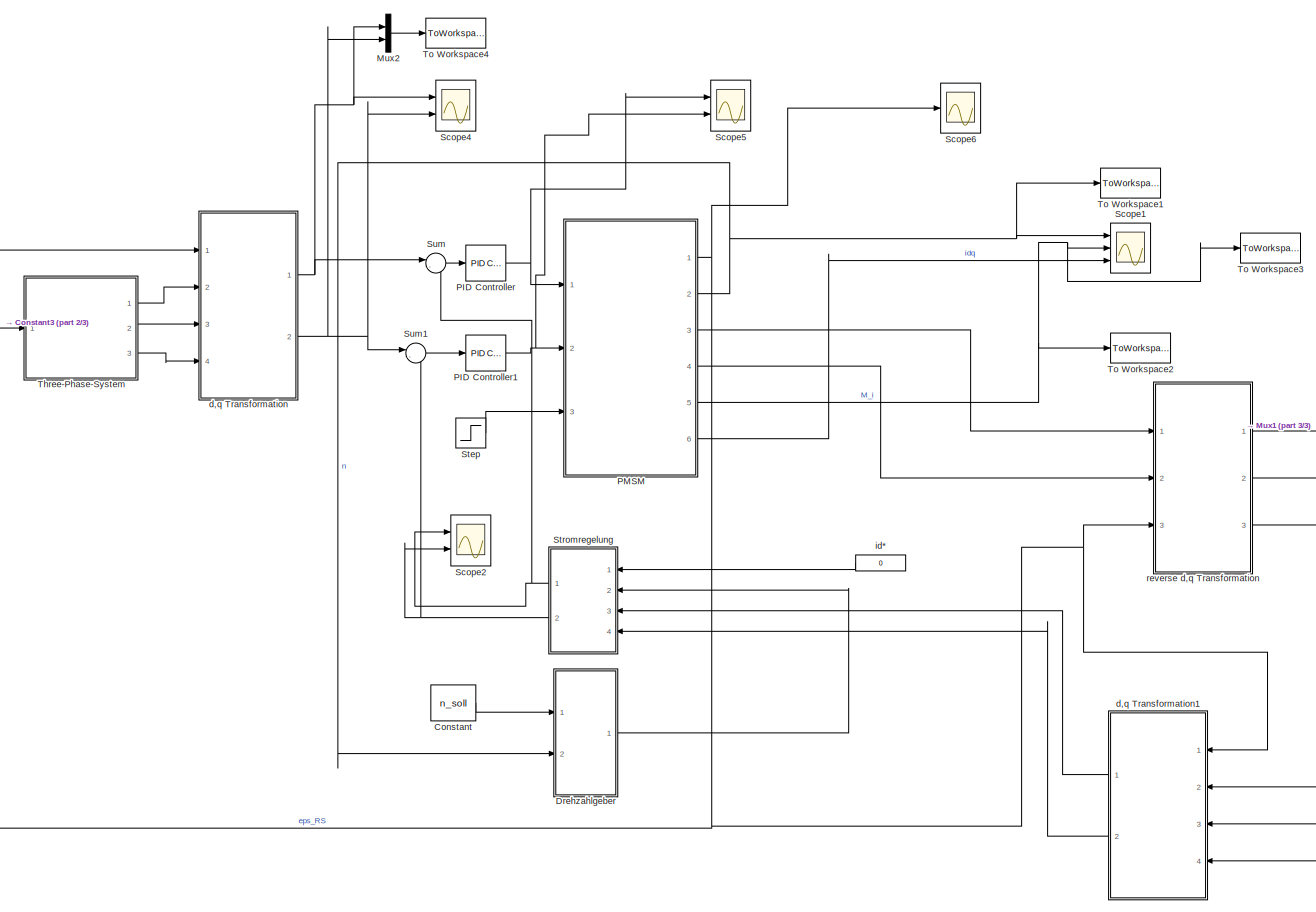
[diagram: root canvas - part 1/3, most of the canvas]
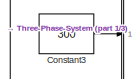
[diagram: root canvas - part 2/3, middle left region]
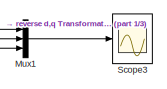
[diagram: root canvas - part 3/3, middle right region]
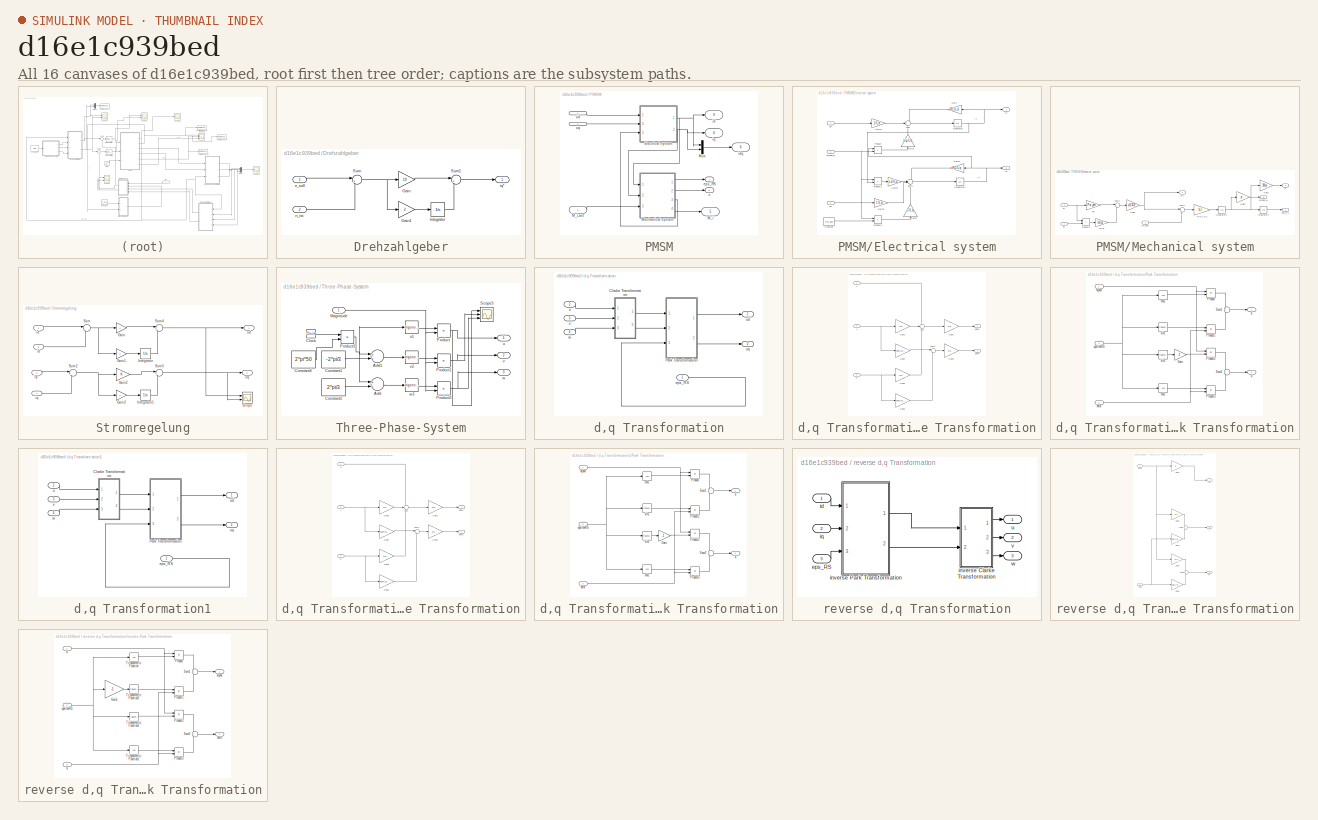
[diagram: thumbnail index - all 16 canvases of the model, root first then tree order]
MODEL slx_d16e1c939bed
KIND model
BLOCK [Constant] Constant
  Value = n_soll
BLOCK [Constant] Constant3
  Value = 300
BLOCK [SubSystem] Drehzahlgeber
  Ports = [2, 1]
  RequestExecContextInheritance = off
BLOCK [Gain] Drehzahlgeber/Gain
  Gain = 10
  OutDataTypeStr = Inherit: Inherit via internal rule
  ParamDataTypeStr = Inherit: Inherit via internal rule
  SaturateOnIntegerOverflow = off
BLOCK [Gain] Drehzahlgeber/Gain1
  Gain = 2
  OutDataTypeStr = Inherit: Inherit via internal rule
  ParamDataTypeStr = Inherit: Inherit via internal rule
  SaturateOnIntegerOverflow = off
BLOCK [Integrator] Drehzahlgeber/Integrator
  Ports = [1, 1]
BLOCK [Sum] Drehzahlgeber/Sum
  IconShape = round
  InputSameDT = off
  Inputs = |+-
  OutDataTypeStr = Inherit: Inherit via internal rule
  Ports = [2, 1]
  SaturateOnIntegerOverflow = off
BLOCK [Sum] Drehzahlgeber/Sum1
  IconShape = round
  InputSameDT = off
  Inputs = |++
  OutDataTypeStr = Inherit: Inherit via internal rule
  Ports = [2, 1]
  SaturateOnIntegerOverflow = off
BLOCK [Outport] Drehzahlgeber/iq*
  IconDisplay = Port number
BLOCK [Inport] Drehzahlgeber/n_ist
  IconDisplay = Port number
  Port = 2
BLOCK [Inport] Drehzahlgeber/n_soll
  IconDisplay = Port number
BLOCK [Mux] Mux1
  DisplayOption = bar
  Inputs = 3
  Ports = [3, 1]
BLOCK [Mux] Mux2
  DisplayOption = bar
  Inputs = 2
  Ports = [2, 1]
BLOCK [Reference] PID Controller  REF=simulink/Continuous/PID Controller
  AntiWindupMode = none
  Controller = PI
  D = 0
  DOutDataTypeStr = Inherit: Inherit via internal rule
  DOutMax = []
  DOutMin = []
  DParamDataTypeStr = Inherit: Inherit via internal rule
  DParamMax = []
  DParamMin = []
  DifferentiatorICPrevScaledInput = 0
  DifferentiatorOutDataTypeStr = Inherit: Inherit via internal rule
  DifferentiatorOutMax = []
  DifferentiatorOutMin = []
  ExternalReset = none
  FilterContinuousStateAttributes = ''
  FilterMethod = Forward Euler
  FilterOutDataTypeStr = Inherit: Inherit via internal rule
  FilterOutMax = []
  FilterOutMin = []
  FilterRTWStateStorageClass = Auto
  FilterStateMustResolveToSignalObject = off
  Form = Parallel
  I = 1
  IOutDataTypeStr = Inherit: Inherit via internal rule
  IOutMax = []
  IOutMin = []
  IParamDataTypeStr = Inherit: Inherit via internal rule
  IParamMax = []
  IParamMin = []
  IgnoreLimit = off
  InitialConditionForFilter = 0
  InitialConditionForIntegrator = 0
  InitialConditionSource = internal
  IntegratorContinuousStateAttributes = ''
  IntegratorMethod = Forward Euler
  IntegratorOutDataTypeStr = Inherit: Inherit via internal rule
  IntegratorOutMax = []
  IntegratorOutMin = []
  IntegratorRTWStateStorageClass = Auto
  IntegratorStateMustResolveToSignalObject = off
  Kb = 1
  KbOutDataTypeStr = Inherit: Inherit via internal rule
  KbOutMax = []
  KbOutMin = []
  KbParamDataTypeStr = Inherit: Inherit via internal rule
  KbParamMax = []
  KbParamMin = []
  Kt = 1
  KtOutDataTypeStr = Inherit: Inherit via internal rule
  KtOutMax = []
  KtOutMin = []
  KtParamDataTypeStr = Inherit: Inherit via internal rule
  KtParamMax = []
  KtParamMin = []
  LimitOutput = off
  LinearizeAsGain = on
  LockScale = off
  LowerSaturationLimit = -inf
  N = 100
  NOutDataTypeStr = Inherit: Inherit via internal rule
  NOutMax = []
  NOutMin = []
  NParamDataTypeStr = Inherit: Inherit via internal rule
  NParamMax = []
  NParamMin = []
  P = 10
  POutDataTypeStr = Inherit: Inherit via internal rule
  POutMax = []
  POutMin = []
  PParamDataTypeStr = Inherit: Inherit via internal rule
  PParamMax = []
  PParamMin = []
  Ports = [1, 1]
  RndMeth = Floor
  SampleTime = -1
  SaturateOnIntegerOverflow = off
  SaturationOutDataTypeStr = Inherit: Same as input
  SaturationOutMax = []
  SaturationOutMin = []
  SourceBlock = simulink/Continuous/PID Controller
  SourceType = PID 1dof
  SumAccumDataTypeStr = Inherit: Inherit via internal rule
  SumDAccumDataTypeStr = Inherit: Inherit via internal rule
  SumDOutDataTypeStr = Inherit: Inherit via internal rule
  SumDOutMax = []
  SumDOutMin = []
  SumI1AccumDataTypeStr = Inherit: Inherit via internal rule
  SumI1OutDataTypeStr = Inherit: Inherit via internal rule
  SumI1OutMax = []
  SumI1OutMin = []
  SumI2AccumDataTypeStr = Inherit: Inherit via internal rule
  SumI2OutDataTypeStr = Inherit: Inherit via internal rule
  SumI2OutMax = []
  SumI2OutMin = []
  SumI3AccumDataTypeStr = Inherit: Inherit via internal rule
  SumI3OutDataTypeStr = Inherit: Inherit via internal rule
  SumI3OutMax = []
  SumI3OutMin = []
  SumOutDataTypeStr = Inherit: Inherit via internal rule
  SumOutMax = []
  SumOutMin = []
  TimeDomain = Continuous-time
  TrackingMode = off
  UpperSaturationLimit = inf
  UseFilter = on
  ZeroCross = on
BLOCK [Reference] PID Controller1  REF=simulink/Continuous/PID Controller
  AntiWindupMode = none
  Controller = PI
  D = 0
  DOutDataTypeStr = Inherit: Inherit via internal rule
  DOutMax = []
  DOutMin = []
  DParamDataTypeStr = Inherit: Inherit via internal rule
  DParamMax = []
  DParamMin = []
  DifferentiatorICPrevScaledInput = 0
  DifferentiatorOutDataTypeStr = Inherit: Inherit via internal rule
  DifferentiatorOutMax = []
  DifferentiatorOutMin = []
  ExternalReset = none
  FilterContinuousStateAttributes = ''
  FilterMethod = Forward Euler
  FilterOutDataTypeStr = Inherit: Inherit via internal rule
  FilterOutMax = []
  FilterOutMin = []
  FilterRTWStateStorageClass = Auto
  FilterStateMustResolveToSignalObject = off
  Form = Parallel
  I = 1
  IOutDataTypeStr = Inherit: Inherit via internal rule
  IOutMax = []
  IOutMin = []
  IParamDataTypeStr = Inherit: Inherit via internal rule
  IParamMax = []
  IParamMin = []
  IgnoreLimit = off
  InitialConditionForFilter = 0
  InitialConditionForIntegrator = 0
  InitialConditionSource = internal
  IntegratorContinuousStateAttributes = ''
  IntegratorMethod = Forward Euler
  IntegratorOutDataTypeStr = Inherit: Inherit via internal rule
  IntegratorOutMax = []
  IntegratorOutMin = []
  IntegratorRTWStateStorageClass = Auto
  IntegratorStateMustResolveToSignalObject = off
  Kb = 1
  KbOutDataTypeStr = Inherit: Inherit via internal rule
  KbOutMax = []
  KbOutMin = []
  KbParamDataTypeStr = Inherit: Inherit via internal rule
  KbParamMax = []
  KbParamMin = []
  Kt = 1
  KtOutDataTypeStr = Inherit: Inherit via internal rule
  KtOutMax = []
  KtOutMin = []
  KtParamDataTypeStr = Inherit: Inherit via internal rule
  KtParamMax = []
  KtParamMin = []
  LimitOutput = off
  LinearizeAsGain = on
  LockScale = off
  LowerSaturationLimit = -inf
  N = 100
  NOutDataTypeStr = Inherit: Inherit via internal rule
  NOutMax = []
  NOutMin = []
  NParamDataTypeStr = Inherit: Inherit via internal rule
  NParamMax = []
  NParamMin = []
  P = 10
  POutDataTypeStr = Inherit: Inherit via internal rule
  POutMax = []
  POutMin = []
  PParamDataTypeStr = Inherit: Inherit via internal rule
  PParamMax = []
  PParamMin = []
  Ports = [1, 1]
  RndMeth = Floor
  SampleTime = -1
  SaturateOnIntegerOverflow = off
  SaturationOutDataTypeStr = Inherit: Same as input
  SaturationOutMax = []
  SaturationOutMin = []
  SourceBlock = simulink/Continuous/PID Controller
  SourceType = PID 1dof
  SumAccumDataTypeStr = Inherit: Inherit via internal rule
  SumDAccumDataTypeStr = Inherit: Inherit via internal rule
  SumDOutDataTypeStr = Inherit: Inherit via internal rule
  SumDOutMax = []
  SumDOutMin = []
  SumI1AccumDataTypeStr = Inherit: Inherit via internal rule
  SumI1OutDataTypeStr = Inherit: Inherit via internal rule
  SumI1OutMax = []
  SumI1OutMin = []
  SumI2AccumDataTypeStr = Inherit: Inherit via internal rule
  SumI2OutDataTypeStr = Inherit: Inherit via internal rule
  SumI2OutMax = []
  SumI2OutMin = []
  SumI3AccumDataTypeStr = Inherit: Inherit via internal rule
  SumI3OutDataTypeStr = Inherit: Inherit via internal rule
  SumI3OutMax = []
  SumI3OutMin = []
  SumOutDataTypeStr = Inherit: Inherit via internal rule
  SumOutMax = []
  SumOutMin = []
  TimeDomain = Continuous-time
  TrackingMode = off
  UpperSaturationLimit = inf
  UseFilter = on
  ZeroCross = on
BLOCK [SubSystem] PMSM
  Ports = [3, 6]
  RequestExecContextInheritance = off
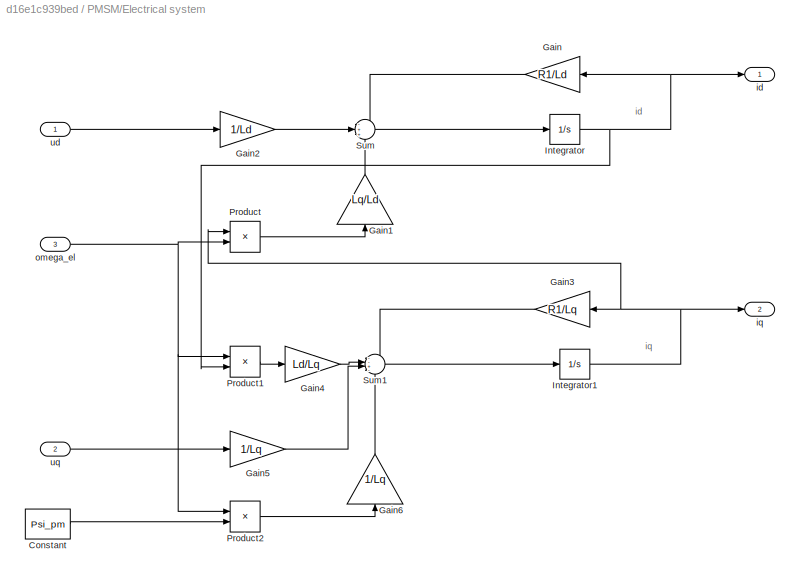
BLOCK [SubSystem] PMSM/Electrical system
  Ports = [3, 2]
  RequestExecContextInheritance = off
BLOCK [Constant] PMSM/Electrical system/Constant
  Value = Psi_pm
BLOCK [Gain] PMSM/Electrical system/Gain
  Gain = R1/Ld
  OutDataTypeStr = Inherit: Inherit via internal rule
  ParamDataTypeStr = Inherit: Inherit via internal rule
  SaturateOnIntegerOverflow = off
BLOCK [Gain] PMSM/Electrical system/Gain1
  Gain = Lq/Ld
  OutDataTypeStr = Inherit: Inherit via internal rule
  ParamDataTypeStr = Inherit: Inherit via internal rule
  SaturateOnIntegerOverflow = off
BLOCK [Gain] PMSM/Electrical system/Gain2
  Gain = 1/Ld
  OutDataTypeStr = Inherit: Inherit via internal rule
  ParamDataTypeStr = Inherit: Inherit via internal rule
  SaturateOnIntegerOverflow = off
BLOCK [Gain] PMSM/Electrical system/Gain3
  Gain = R1/Lq
  OutDataTypeStr = Inherit: Inherit via internal rule
  ParamDataTypeStr = Inherit: Inherit via internal rule
  SaturateOnIntegerOverflow = off
BLOCK [Gain] PMSM/Electrical system/Gain4
  Gain = Ld/Lq
  OutDataTypeStr = Inherit: Inherit via internal rule
  ParamDataTypeStr = Inherit: Inherit via internal rule
  SaturateOnIntegerOverflow = off
BLOCK [Gain] PMSM/Electrical system/Gain5
  Gain = 1/Lq
  OutDataTypeStr = Inherit: Inherit via internal rule
  ParamDataTypeStr = Inherit: Inherit via internal rule
  SaturateOnIntegerOverflow = off
BLOCK [Gain] PMSM/Electrical system/Gain6
  Gain = 1/Lq
  OutDataTypeStr = Inherit: Inherit via internal rule
  ParamDataTypeStr = Inherit: Inherit via internal rule
  SaturateOnIntegerOverflow = off
BLOCK [Integrator] PMSM/Electrical system/Integrator
  Ports = [1, 1]
BLOCK [Integrator] PMSM/Electrical system/Integrator1
  Ports = [1, 1]
BLOCK [Product] PMSM/Electrical system/Product
  InputSameDT = off
  OutDataTypeStr = Inherit: Inherit via internal rule
  Ports = [2, 1]
  RndMeth = Floor
  SaturateOnIntegerOverflow = off
BLOCK [Product] PMSM/Electrical system/Product1
  InputSameDT = off
  OutDataTypeStr = Inherit: Inherit via internal rule
  Ports = [2, 1]
  RndMeth = Floor
  SaturateOnIntegerOverflow = off
BLOCK [Product] PMSM/Electrical system/Product2
  InputSameDT = off
  OutDataTypeStr = Inherit: Inherit via internal rule
  Ports = [2, 1]
  RndMeth = Floor
  SaturateOnIntegerOverflow = off
BLOCK [Sum] PMSM/Electrical system/Sum
  IconShape = round
  InputSameDT = off
  Inputs = -++
  OutDataTypeStr = Inherit: Inherit via internal rule
  Ports = [3, 1]
  SaturateOnIntegerOverflow = off
BLOCK [Sum] PMSM/Electrical system/Sum1
  IconShape = round
  InputSameDT = off
  Inputs = --+-
  OutDataTypeStr = Inherit: Inherit via internal rule
  Ports = [4, 1]
  SaturateOnIntegerOverflow = off
BLOCK [Outport] PMSM/Electrical system/id
  IconDisplay = Port number
BLOCK [Outport] PMSM/Electrical system/iq
  IconDisplay = Port number
  Port = 2
BLOCK [Inport] PMSM/Electrical system/omega_el
  IconDisplay = Port number
  Port = 3
BLOCK [Inport] PMSM/Electrical system/ud
  IconDisplay = Port number
BLOCK [Inport] PMSM/Electrical system/uq
  IconDisplay = Port number
  Port = 2
BLOCK [Inport] PMSM/M_Last
  IconDisplay = Port number
  Port = 3
BLOCK [Outport] PMSM/M_i
  IconDisplay = Port number
  Port = 5
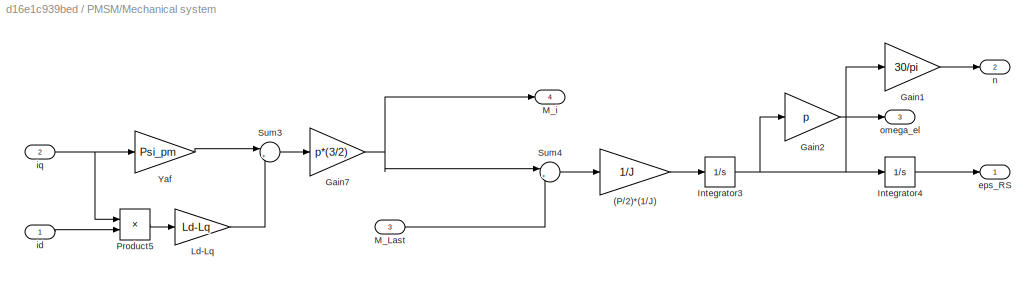
BLOCK [SubSystem] PMSM/Mechanical system
  Ports = [3, 4]
  RequestExecContextInheritance = off
BLOCK [Gain] PMSM/Mechanical system/(P//2)*(1//J)
  Gain = 1/J
  OutDataTypeStr = Inherit: Inherit via internal rule
  ParamDataTypeStr = Inherit: Inherit via internal rule
  SaturateOnIntegerOverflow = off
BLOCK [Gain] PMSM/Mechanical system/Gain1
  Gain = 30/pi
  OutDataTypeStr = Inherit: Inherit via internal rule
  ParamDataTypeStr = Inherit: Inherit via internal rule
  SaturateOnIntegerOverflow = off
BLOCK [Gain] PMSM/Mechanical system/Gain2
  Gain = p
  OutDataTypeStr = Inherit: Inherit via internal rule
  ParamDataTypeStr = Inherit: Inherit via internal rule
  SaturateOnIntegerOverflow = off
BLOCK [Gain] PMSM/Mechanical system/Gain7
  Gain = p*(3/2)
  OutDataTypeStr = Inherit: Inherit via internal rule
  ParamDataTypeStr = Inherit: Inherit via internal rule
  SaturateOnIntegerOverflow = off
BLOCK [Integrator] PMSM/Mechanical system/Integrator3
  Ports = [1, 1]
BLOCK [Integrator] PMSM/Mechanical system/Integrator4
  Ports = [1, 1]
BLOCK [Gain] PMSM/Mechanical system/Ld-Lq
  Gain = Ld-Lq
  OutDataTypeStr = Inherit: Inherit via internal rule
  ParamDataTypeStr = Inherit: Inherit via internal rule
  SaturateOnIntegerOverflow = off
BLOCK [Inport] PMSM/Mechanical system/M_Last
  IconDisplay = Port number
  Port = 3
BLOCK [Outport] PMSM/Mechanical system/M_i
  IconDisplay = Port number
  Port = 4
BLOCK [Product] PMSM/Mechanical system/Product5
  InputSameDT = off
  OutDataTypeStr = Inherit: Inherit via internal rule
  Ports = [2, 1]
  SaturateOnIntegerOverflow = off
BLOCK [Sum] PMSM/Mechanical system/Sum3
  IconShape = round
  InputSameDT = off
  Inputs = |++
  OutDataTypeStr = Inherit: Inherit via internal rule
  Ports = [2, 1]
  SaturateOnIntegerOverflow = off
BLOCK [Sum] PMSM/Mechanical system/Sum4
  IconShape = round
  InputSameDT = off
  Inputs = |+-
  OutDataTypeStr = Inherit: Inherit via internal rule
  Ports = [2, 1]
  SaturateOnIntegerOverflow = off
BLOCK [Gain] PMSM/Mechanical system/Yaf
  Gain = Psi_pm
  OutDataTypeStr = Inherit: Inherit via internal rule
  ParamDataTypeStr = Inherit: Inherit via internal rule
  SaturateOnIntegerOverflow = off
BLOCK [Outport] PMSM/Mechanical system/eps_RS
  IconDisplay = Port number
BLOCK [Inport] PMSM/Mechanical system/id
  IconDisplay = Port number
BLOCK [Inport] PMSM/Mechanical system/iq
  IconDisplay = Port number
  Port = 2
BLOCK [Outport] PMSM/Mechanical system/n
  IconDisplay = Port number
  Port = 2
BLOCK [Outport] PMSM/Mechanical system/omega_el
  IconDisplay = Port number
  Port = 3
BLOCK [Mux] PMSM/Mux
  DisplayOption = bar
  Inputs = 2
  Ports = [2, 1]
BLOCK [Outport] PMSM/eps_RS
  IconDisplay = Port number
BLOCK [Outport] PMSM/id
  IconDisplay = Port number
  Port = 3
BLOCK [Outport] PMSM/idq
  IconDisplay = Port number
  Port = 6
BLOCK [Outport] PMSM/iq
  IconDisplay = Port number
  Port = 4
BLOCK [Outport] PMSM/n
  IconDisplay = Port number
  Port = 2
BLOCK [Inport] PMSM/ud 
  IconDisplay = Port number
BLOCK [Inport] PMSM/uq
  IconDisplay = Port number
  Port = 2
BLOCK [Scope] Scope1
  Floating = off
  LimitDataPoints = off
  NumInputPorts = 3
  Ports = [3]
  SaveName = ScopeData3
  ShowLegends = off
  TimeRange = 0.112043795620438
  YMax = 5000~2500~6000
  YMin = 0~-1000~-4000
  ZoomMode = xonly
BLOCK [Scope] Scope2
  Floating = off
  LimitDataPoints = off
  NumInputPorts = 2
  Ports = [2]
  SaveName = ScopeData2
  ShowLegends = off
  TimeRange = 0.2
  YMax = 20000~400
  YMin = -25000~-400
  ZoomMode = xonly
BLOCK [Scope] Scope3
  Floating = off
  LimitDataPoints = off
  NumInputPorts = 1
  Ports = [1]
  SaveName = ScopeData4
  ShowLegends = off
  TimeRange = 0.02
  YMax = 5000
  YMin = 0
  ZoomMode = xonly
BLOCK [Scope] Scope4
  Floating = off
  LimitDataPoints = off
  NumInputPorts = 2
  Ports = [2]
  SaveName = ScopeData5
  ShowLegends = off
  TimeRange = 0.2
  YMax = 20000~400
  YMin = -25000~-400
  ZoomMode = xonly
BLOCK [Scope] Scope5
  Floating = off
  LimitDataPoints = off
  NumInputPorts = 2
  Ports = [2]
  SaveName = ScopeData6
  ShowLegends = off
  TimeRange = 0.2
  YMax = 20000~400
  YMin = -25000~-400
  ZoomMode = xonly
BLOCK [Scope] Scope6
  Floating = off
  LimitDataPoints = off
  NumInputPorts = 1
  Ports = [1]
  SaveName = ScopeData7
  ShowLegends = off
  TimeRange = 0.02
  YMax = 5000
  YMin = 0
  ZoomMode = xonly
BLOCK [Step] Step
  After = 30
  SampleTime = 0
  Time = 0.08
BLOCK [SubSystem] Stromregelung
  Ports = [4, 2]
  RequestExecContextInheritance = off
BLOCK [Gain] Stromregelung/Gain
  OutDataTypeStr = Inherit: Inherit via internal rule
  ParamDataTypeStr = Inherit: Inherit via internal rule
  SaturateOnIntegerOverflow = off
BLOCK [Gain] Stromregelung/Gain1
  Gain = 2
  OutDataTypeStr = Inherit: Inherit via internal rule
  ParamDataTypeStr = Inherit: Inherit via internal rule
  SaturateOnIntegerOverflow = off
BLOCK [Gain] Stromregelung/Gain2
  OutDataTypeStr = Inherit: Inherit via internal rule
  ParamDataTypeStr = Inherit: Inherit via internal rule
  SaturateOnIntegerOverflow = off
BLOCK [Gain] Stromregelung/Gain3
  Gain = 2
  OutDataTypeStr = Inherit: Inherit via internal rule
  ParamDataTypeStr = Inherit: Inherit via internal rule
  SaturateOnIntegerOverflow = off
BLOCK [Integrator] Stromregelung/Integrator
  Ports = [1, 1]
BLOCK [Integrator] Stromregelung/Integrator1
  Ports = [1, 1]
BLOCK [Scope] Stromregelung/Scope
  DataFormat = StructureWithTime
  Floating = off
  LimitDataPoints = off
  NumInputPorts = 2
  Ports = [2]
  SampleTime = 0
  SaveName = ScopeData1
  ShowLegends = off
  TimeRange = 5
  YMax = 0~5
  YMin = -1.3~-5
BLOCK [Sum] Stromregelung/Sum
  IconShape = round
  InputSameDT = off
  Inputs = |+-
  OutDataTypeStr = Inherit: Inherit via internal rule
  Ports = [2, 1]
  SaturateOnIntegerOverflow = off
BLOCK [Sum] Stromregelung/Sum2
  IconShape = round
  InputSameDT = off
  Inputs = |+-
  OutDataTypeStr = Inherit: Inherit via internal rule
  Ports = [2, 1]
  SaturateOnIntegerOverflow = off
BLOCK [Sum] Stromregelung/Sum4
  IconShape = round
  InputSameDT = off
  Inputs = |++
  OutDataTypeStr = Inherit: Inherit via internal rule
  Ports = [2, 1]
  SaturateOnIntegerOverflow = off
BLOCK [Sum] Stromregelung/Sum5
  IconShape = round
  InputSameDT = off
  Inputs = |++
  OutDataTypeStr = Inherit: Inherit via internal rule
  Ports = [2, 1]
  SaturateOnIntegerOverflow = off
BLOCK [Inport] Stromregelung/id
  IconDisplay = Port number
  Port = 3
BLOCK [Inport] Stromregelung/id*
  IconDisplay = Port number
BLOCK [Inport] Stromregelung/iq
  IconDisplay = Port number
  Port = 4
BLOCK [Inport] Stromregelung/iq*
  IconDisplay = Port number
  Port = 2
BLOCK [Outport] Stromregelung/ud
  IconDisplay = Port number
BLOCK [Outport] Stromregelung/uq
  IconDisplay = Port number
  Port = 2
BLOCK [Sum] Sum
  IconShape = round
  InputSameDT = off
  Inputs = |-+
  OutDataTypeStr = Inherit: Inherit via internal rule
  Ports = [2, 1]
  SaturateOnIntegerOverflow = off
BLOCK [Sum] Sum1
  IconShape = round
  InputSameDT = off
  Inputs = |-+
  OutDataTypeStr = Inherit: Inherit via internal rule
  Ports = [2, 1]
  SaturateOnIntegerOverflow = off
BLOCK [SubSystem] Three-Phase-System
  Ports = [1, 3]
  RequestExecContextInheritance = off
BLOCK [Sum] Three-Phase-System/Add
  InputSameDT = off
  OutDataTypeStr = Inherit: Inherit via internal rule
  Ports = [2, 1]
  SaturateOnIntegerOverflow = off
BLOCK [Sum] Three-Phase-System/Add1
  InputSameDT = off
  OutDataTypeStr = Inherit: Inherit via internal rule
  Ports = [2, 1]
  SaturateOnIntegerOverflow = off
BLOCK [Clock] Three-Phase-System/Clock
BLOCK [Constant] Three-Phase-System/Constant1
  Value = -2*pi/3
BLOCK [Constant] Three-Phase-System/Constant2
  Value = 2*pi/3
BLOCK [Constant] Three-Phase-System/Constant4
  Value = 2*pi*50
BLOCK [Inport] Three-Phase-System/Magnitude
  IconDisplay = Port number
BLOCK [Product] Three-Phase-System/Product
  InputSameDT = off
  OutDataTypeStr = Inherit: Inherit via internal rule
  Ports = [2, 1]
  RndMeth = Floor
  SaturateOnIntegerOverflow = off
BLOCK [Product] Three-Phase-System/Product1
  InputSameDT = off
  OutDataTypeStr = Inherit: Inherit via internal rule
  Ports = [2, 1]
  RndMeth = Floor
  SaturateOnIntegerOverflow = off
BLOCK [Product] Three-Phase-System/Product2
  InputSameDT = off
  OutDataTypeStr = Inherit: Inherit via internal rule
  Ports = [2, 1]
  RndMeth = Floor
  SaturateOnIntegerOverflow = off
BLOCK [Product] Three-Phase-System/Product3
  InputSameDT = off
  OutDataTypeStr = Inherit: Inherit via internal rule
  Ports = [2, 1]
  RndMeth = Floor
  SaturateOnIntegerOverflow = off
BLOCK [Scope] Three-Phase-System/Scope3
  Floating = off
  LimitDataPoints = off
  NumInputPorts = 3
  Ports = [3]
  ShowLegends = off
  YMax = 5~5~5
  YMin = -5~-5~-5
  ZoomMode = xonly
BLOCK [Outport] Three-Phase-System/u
  IconDisplay = Port number
BLOCK [Trigonometry] Three-Phase-System/u1
  Ports = [1, 1]
BLOCK [Outport] Three-Phase-System/v
  IconDisplay = Port number
  Port = 2
BLOCK [Trigonometry] Three-Phase-System/v2
  Ports = [1, 1]
BLOCK [Outport] Three-Phase-System/w
  IconDisplay = Port number
  Port = 3
BLOCK [Trigonometry] Three-Phase-System/w3
  Ports = [1, 1]
BLOCK [ToWorkspace] To Workspace1
  FixptAsFi = on
  MaxDataPoints = inf
  Ports = [1]
  SampleTime = -1
  Save2DSignal = 3-D array (concatenate along third dimension)
  SaveFormat = Timeseries
  VariableName = n1
BLOCK [ToWorkspace] To Workspace2
  FixptAsFi = on
  MaxDataPoints = inf
  Ports = [1]
  SampleTime = -1
  Save2DSignal = 3-D array (concatenate along third dimension)
  SaveFormat = Timeseries
  VariableName = Mi1
BLOCK [ToWorkspace] To Workspace3
  FixptAsFi = on
  MaxDataPoints = inf
  Ports = [1]
  SampleTime = -1
  Save2DSignal = 3-D array (concatenate along third dimension)
  SaveFormat = Timeseries
  VariableName = idq1
BLOCK [ToWorkspace] To Workspace4
  FixptAsFi = on
  MaxDataPoints = inf
  Ports = [1]
  SampleTime = -1
  Save2DSignal = 3-D array (concatenate along third dimension)
  SaveFormat = Timeseries
  VariableName = n
BLOCK [SubSystem] d,q Transformation
  Ports = [4, 2]
  RequestExecContextInheritance = off
BLOCK [SubSystem] d,q Transformation/Clarke Transformation
  Ports = [3, 2]
  RequestExecContextInheritance = off
BLOCK [Gain] d,q Transformation/Clarke Transformation/Gain1
  Gain = 2/3
  OutDataTypeStr = Inherit: Inherit via internal rule
  ParamDataTypeStr = Inherit: Inherit via internal rule
  SaturateOnIntegerOverflow = off
BLOCK [Gain] d,q Transformation/Clarke Transformation/Gain3
  Gain = 1/2
  OutDataTypeStr = Inherit: Inherit via internal rule
  ParamDataTypeStr = Inherit: Inherit via internal rule
  SaturateOnIntegerOverflow = off
BLOCK [Gain] d,q Transformation/Clarke Transformation/Gain4
  Gain = sqrt(3)/2
  OutDataTypeStr = Inherit: Inherit via internal rule
  ParamDataTypeStr = Inherit: Inherit via internal rule
  SaturateOnIntegerOverflow = off
BLOCK [Gain] d,q Transformation/Clarke Transformation/Gain5
  Gain = 1/2
  OutDataTypeStr = Inherit: Inherit via internal rule
  ParamDataTypeStr = Inherit: Inherit via internal rule
  SaturateOnIntegerOverflow = off
BLOCK [Gain] d,q Transformation/Clarke Transformation/Gain6
  Gain = sqrt(3)/2
  OutDataTypeStr = Inherit: Inherit via internal rule
  ParamDataTypeStr = Inherit: Inherit via internal rule
  SaturateOnIntegerOverflow = off
BLOCK [Gain] d,q Transformation/Clarke Transformation/Gain9
  Gain = 2/3
  OutDataTypeStr = Inherit: Inherit via internal rule
  ParamDataTypeStr = Inherit: Inherit via internal rule
  SaturateOnIntegerOverflow = off
BLOCK [Sum] d,q Transformation/Clarke Transformation/Sum
  IconShape = round
  InputSameDT = off
  Inputs = +--
  OutDataTypeStr = Inherit: Inherit via internal rule
  Ports = [3, 1]
  SaturateOnIntegerOverflow = off
BLOCK [Sum] d,q Transformation/Clarke Transformation/Sum1
  IconShape = round
  InputSameDT = off
  Inputs = |+-
  OutDataTypeStr = Inherit: Inherit via internal rule
  Ports = [2, 1]
  SaturateOnIntegerOverflow = off
BLOCK [Outport] d,q Transformation/Clarke Transformation/alpha
  IconDisplay = Port number
BLOCK [Outport] d,q Transformation/Clarke Transformation/beta
  IconDisplay = Port number
  Port = 2
BLOCK [Inport] d,q Transformation/Clarke Transformation/u
  IconDisplay = Port number
BLOCK [Inport] d,q Transformation/Clarke Transformation/v
  IconDisplay = Port number
  Port = 2
BLOCK [Inport] d,q Transformation/Clarke Transformation/w
  IconDisplay = Port number
  Port = 3
BLOCK [SubSystem] d,q Transformation/Park Transformation
  Ports = [3, 2]
  RequestExecContextInheritance = off
BLOCK [Gain] d,q Transformation/Park Transformation/Gain
  Gain = -1
  OutDataTypeStr = Inherit: Inherit via internal rule
  ParamDataTypeStr = Inherit: Inherit via internal rule
  SaturateOnIntegerOverflow = off
BLOCK [Product] d,q Transformation/Park Transformation/Product
  InputSameDT = off
  OutDataTypeStr = Inherit: Inherit via internal rule
  Ports = [2, 1]
  RndMeth = Floor
  SaturateOnIntegerOverflow = off
BLOCK [Product] d,q Transformation/Park Transformation/Product1
  InputSameDT = off
  OutDataTypeStr = Inherit: Inherit via internal rule
  Ports = [2, 1]
  RndMeth = Floor
  SaturateOnIntegerOverflow = off
BLOCK [Product] d,q Transformation/Park Transformation/Product2
  InputSameDT = off
  OutDataTypeStr = Inherit: Inherit via internal rule
  Ports = [2, 1]
  RndMeth = Floor
  SaturateOnIntegerOverflow = off
BLOCK [Product] d,q Transformation/Park Transformation/Product3
  InputSameDT = off
  OutDataTypeStr = Inherit: Inherit via internal rule
  Ports = [2, 1]
  RndMeth = Floor
  SaturateOnIntegerOverflow = off
BLOCK [Sum] d,q Transformation/Park Transformation/Sum1
  IconShape = round
  InputSameDT = off
  OutDataTypeStr = Inherit: Inherit via internal rule
  Ports = [2, 1]
  SaturateOnIntegerOverflow = off
BLOCK [Sum] d,q Transformation/Park Transformation/Sum2
  IconShape = round
  InputSameDT = off
  OutDataTypeStr = Inherit: Inherit via internal rule
  Ports = [2, 1]
  SaturateOnIntegerOverflow = off
BLOCK [Inport] d,q Transformation/Park Transformation/alpha
  IconDisplay = Port number
BLOCK [Inport] d,q Transformation/Park Transformation/beta
  IconDisplay = Port number
  Port = 2
BLOCK [Trigonometry] d,q Transformation/Park Transformation/cos1
  Operator = cos
  Ports = [1, 1]
BLOCK [Trigonometry] d,q Transformation/Park Transformation/cos2
  Operator = cos
  Ports = [1, 1]
BLOCK [Outport] d,q Transformation/Park Transformation/d
  IconDisplay = Port number
BLOCK [Inport] d,q Transformation/Park Transformation/epsilonRS
  IconDisplay = Port number
  Port = 3
BLOCK [Outport] d,q Transformation/Park Transformation/q
  IconDisplay = Port number
  Port = 2
BLOCK [Trigonometry] d,q Transformation/Park Transformation/sin1
  Ports = [1, 1]
BLOCK [Trigonometry] d,q Transformation/Park Transformation/sin2
  Ports = [1, 1]
BLOCK [Inport] d,q Transformation/eps_RS
  IconDisplay = Port number
BLOCK [Inport] d,q Transformation/u
  IconDisplay = Port number
  Port = 2
BLOCK [Outport] d,q Transformation/ud
  IconDisplay = Port number
BLOCK [Outport] d,q Transformation/uq
  IconDisplay = Port number
  Port = 2
BLOCK [Inport] d,q Transformation/v
  IconDisplay = Port number
  Port = 3
BLOCK [Inport] d,q Transformation/w
  IconDisplay = Port number
  Port = 4
BLOCK [SubSystem] d,q Transformation1
  Ports = [4, 2]
  RequestExecContextInheritance = off
BLOCK [SubSystem] d,q Transformation1/Clarke Transformation
  Ports = [3, 2]
  RequestExecContextInheritance = off
BLOCK [Gain] d,q Transformation1/Clarke Transformation/Gain1
  Gain = 2/3
  OutDataTypeStr = Inherit: Inherit via internal rule
  ParamDataTypeStr = Inherit: Inherit via internal rule
  SaturateOnIntegerOverflow = off
BLOCK [Gain] d,q Transformation1/Clarke Transformation/Gain3
  Gain = 1/2
  OutDataTypeStr = Inherit: Inherit via internal rule
  ParamDataTypeStr = Inherit: Inherit via internal rule
  SaturateOnIntegerOverflow = off
BLOCK [Gain] d,q Transformation1/Clarke Transformation/Gain4
  Gain = sqrt(3)/2
  OutDataTypeStr = Inherit: Inherit via internal rule
  ParamDataTypeStr = Inherit: Inherit via internal rule
  SaturateOnIntegerOverflow = off
BLOCK [Gain] d,q Transformation1/Clarke Transformation/Gain5
  Gain = 1/2
  OutDataTypeStr = Inherit: Inherit via internal rule
  ParamDataTypeStr = Inherit: Inherit via internal rule
  SaturateOnIntegerOverflow = off
BLOCK [Gain] d,q Transformation1/Clarke Transformation/Gain6
  Gain = sqrt(3)/2
  OutDataTypeStr = Inherit: Inherit via internal rule
  ParamDataTypeStr = Inherit: Inherit via internal rule
  SaturateOnIntegerOverflow = off
BLOCK [Gain] d,q Transformation1/Clarke Transformation/Gain9
  Gain = 2/3
  OutDataTypeStr = Inherit: Inherit via internal rule
  ParamDataTypeStr = Inherit: Inherit via internal rule
  SaturateOnIntegerOverflow = off
BLOCK [Sum] d,q Transformation1/Clarke Transformation/Sum
  IconShape = round
  InputSameDT = off
  Inputs = +--
  OutDataTypeStr = Inherit: Inherit via internal rule
  Ports = [3, 1]
  SaturateOnIntegerOverflow = off
BLOCK [Sum] d,q Transformation1/Clarke Transformation/Sum1
  IconShape = round
  InputSameDT = off
  Inputs = |+-
  OutDataTypeStr = Inherit: Inherit via internal rule
  Ports = [2, 1]
  SaturateOnIntegerOverflow = off
BLOCK [Outport] d,q Transformation1/Clarke Transformation/alpha
  IconDisplay = Port number
BLOCK [Outport] d,q Transformation1/Clarke Transformation/beta
  IconDisplay = Port number
  Port = 2
BLOCK [Inport] d,q Transformation1/Clarke Transformation/u
  IconDisplay = Port number
BLOCK [Inport] d,q Transformation1/Clarke Transformation/v
  IconDisplay = Port number
  Port = 2
BLOCK [Inport] d,q Transformation1/Clarke Transformation/w
  IconDisplay = Port number
  Port = 3
BLOCK [SubSystem] d,q Transformation1/Park Transformation
  Ports = [3, 2]
  RequestExecContextInheritance = off
BLOCK [Gain] d,q Transformation1/Park Transformation/Gain
  Gain = -1
  OutDataTypeStr = Inherit: Inherit via internal rule
  ParamDataTypeStr = Inherit: Inherit via internal rule
  SaturateOnIntegerOverflow = off
BLOCK [Product] d,q Transformation1/Park Transformation/Product
  InputSameDT = off
  OutDataTypeStr = Inherit: Inherit via internal rule
  Ports = [2, 1]
  RndMeth = Floor
  SaturateOnIntegerOverflow = off
BLOCK [Product] d,q Transformation1/Park Transformation/Product1
  InputSameDT = off
  OutDataTypeStr = Inherit: Inherit via internal rule
  Ports = [2, 1]
  RndMeth = Floor
  SaturateOnIntegerOverflow = off
BLOCK [Product] d,q Transformation1/Park Transformation/Product2
  InputSameDT = off
  OutDataTypeStr = Inherit: Inherit via internal rule
  Ports = [2, 1]
  RndMeth = Floor
  SaturateOnIntegerOverflow = off
BLOCK [Product] d,q Transformation1/Park Transformation/Product3
  InputSameDT = off
  OutDataTypeStr = Inherit: Inherit via internal rule
  Ports = [2, 1]
  RndMeth = Floor
  SaturateOnIntegerOverflow = off
BLOCK [Sum] d,q Transformation1/Park Transformation/Sum1
  IconShape = round
  InputSameDT = off
  OutDataTypeStr = Inherit: Inherit via internal rule
  Ports = [2, 1]
  SaturateOnIntegerOverflow = off
BLOCK [Sum] d,q Transformation1/Park Transformation/Sum2
  IconShape = round
  InputSameDT = off
  OutDataTypeStr = Inherit: Inherit via internal rule
  Ports = [2, 1]
  SaturateOnIntegerOverflow = off
BLOCK [Inport] d,q Transformation1/Park Transformation/alpha
  IconDisplay = Port number
BLOCK [Inport] d,q Transformation1/Park Transformation/beta
  IconDisplay = Port number
  Port = 2
BLOCK [Trigonometry] d,q Transformation1/Park Transformation/cos1
  Operator = cos
  Ports = [1, 1]
BLOCK [Trigonometry] d,q Transformation1/Park Transformation/cos2
  Operator = cos
  Ports = [1, 1]
BLOCK [Outport] d,q Transformation1/Park Transformation/d
  IconDisplay = Port number
BLOCK [Inport] d,q Transformation1/Park Transformation/epsilonRS
  IconDisplay = Port number
  Port = 3
BLOCK [Outport] d,q Transformation1/Park Transformation/q
  IconDisplay = Port number
  Port = 2
BLOCK [Trigonometry] d,q Transformation1/Park Transformation/sin1
  Ports = [1, 1]
BLOCK [Trigonometry] d,q Transformation1/Park Transformation/sin2
  Ports = [1, 1]
BLOCK [Inport] d,q Transformation1/eps_RS
  IconDisplay = Port number
BLOCK [Inport] d,q Transformation1/u
  IconDisplay = Port number
  Port = 2
BLOCK [Outport] d,q Transformation1/ud
  IconDisplay = Port number
BLOCK [Outport] d,q Transformation1/uq
  IconDisplay = Port number
  Port = 2
BLOCK [Inport] d,q Transformation1/v
  IconDisplay = Port number
  Port = 3
BLOCK [Inport] d,q Transformation1/w
  IconDisplay = Port number
  Port = 4
BLOCK [Constant] id*
  Value = 0
BLOCK [SubSystem] reverse d,q Transformation
  Ports = [3, 3]
  RequestExecContextInheritance = off
BLOCK [Inport] reverse d,q Transformation/eps_RS
  IconDisplay = Port number
  Port = 3
BLOCK [Inport] reverse d,q Transformation/id
  IconDisplay = Port number
BLOCK [SubSystem] reverse d,q Transformation/inverse Clarke Transformation
  Ports = [2, 3]
  RequestExecContextInheritance = off
BLOCK [Gain] reverse d,q Transformation/inverse Clarke Transformation/Gain1
  OutDataTypeStr = Inherit: Inherit via internal rule
  ParamDataTypeStr = Inherit: Inherit via internal rule
  SaturateOnIntegerOverflow = off
BLOCK [Gain] reverse d,q Transformation/inverse Clarke Transformation/Gain2
  Gain = 1/2
  OutDataTypeStr = Inherit: Inherit via internal rule
  ParamDataTypeStr = Inherit: Inherit via internal rule
  SaturateOnIntegerOverflow = off
BLOCK [Gain] reverse d,q Transformation/inverse Clarke Transformation/Gain4
  Gain = sqrt(3)/2
  OutDataTypeStr = Inherit: Inherit via internal rule
  ParamDataTypeStr = Inherit: Inherit via internal rule
  SaturateOnIntegerOverflow = off
BLOCK [Gain] reverse d,q Transformation/inverse Clarke Transformation/Gain5
  Gain = 1/2
  OutDataTypeStr = Inherit: Inherit via internal rule
  ParamDataTypeStr = Inherit: Inherit via internal rule
  SaturateOnIntegerOverflow = off
BLOCK [Gain] reverse d,q Transformation/inverse Clarke Transformation/Gain6
  Gain = sqrt(3)/2
  OutDataTypeStr = Inherit: Inherit via internal rule
  ParamDataTypeStr = Inherit: Inherit via internal rule
  SaturateOnIntegerOverflow = off
BLOCK [Sum] reverse d,q Transformation/inverse Clarke Transformation/Sum2
  IconShape = round
  InputSameDT = off
  Inputs = -+
  OutDataTypeStr = Inherit: Inherit via internal rule
  Ports = [2, 1]
  SaturateOnIntegerOverflow = off
BLOCK [Sum] reverse d,q Transformation/inverse Clarke Transformation/Sum3
  IconShape = round
  InputSameDT = off
  Inputs = --
  OutDataTypeStr = Inherit: Inherit via internal rule
  Ports = [2, 1]
  SaturateOnIntegerOverflow = off
BLOCK [Inport] reverse d,q Transformation/inverse Clarke Transformation/alpha
  IconDisplay = Port number
BLOCK [Inport] reverse d,q Transformation/inverse Clarke Transformation/beta
  IconDisplay = Port number
  Port = 2
BLOCK [Outport] reverse d,q Transformation/inverse Clarke Transformation/iu
  IconDisplay = Port number
BLOCK [Outport] reverse d,q Transformation/inverse Clarke Transformation/iv
  IconDisplay = Port number
  Port = 2
BLOCK [Outport] reverse d,q Transformation/inverse Clarke Transformation/iw
  IconDisplay = Port number
  Port = 3
BLOCK [SubSystem] reverse d,q Transformation/inverse Park Transformation
  Ports = [3, 2]
  RequestExecContextInheritance = off
BLOCK [Gain] reverse d,q Transformation/inverse Park Transformation/Gain1
  Gain = -1
  OutDataTypeStr = Inherit: Inherit via internal rule
  ParamDataTypeStr = Inherit: Inherit via internal rule
  SaturateOnIntegerOverflow = off
BLOCK [Product] reverse d,q Transformation/inverse Park Transformation/Product
  InputSameDT = off
  OutDataTypeStr = Inherit: Inherit via internal rule
  Ports = [2, 1]
  RndMeth = Floor
  SaturateOnIntegerOverflow = off
BLOCK [Product] reverse d,q Transformation/inverse Park Transformation/Product1
  InputSameDT = off
  OutDataTypeStr = Inherit: Inherit via internal rule
  Ports = [2, 1]
  RndMeth = Floor
  SaturateOnIntegerOverflow = off
BLOCK [Product] reverse d,q Transformation/inverse Park Transformation/Product2
  InputSameDT = off
  OutDataTypeStr = Inherit: Inherit via internal rule
  Ports = [2, 1]
  RndMeth = Floor
  SaturateOnIntegerOverflow = off
BLOCK [Product] reverse d,q Transformation/inverse Park Transformation/Product3
  InputSameDT = off
  OutDataTypeStr = Inherit: Inherit via internal rule
  Ports = [2, 1]
  RndMeth = Floor
  SaturateOnIntegerOverflow = off
BLOCK [Sum] reverse d,q Transformation/inverse Park Transformation/Sum1
  IconShape = round
  InputSameDT = off
  OutDataTypeStr = Inherit: Inherit via internal rule
  Ports = [2, 1]
  SaturateOnIntegerOverflow = off
BLOCK [Sum] reverse d,q Transformation/inverse Park Transformation/Sum2
  IconShape = round
  InputSameDT = off
  OutDataTypeStr = Inherit: Inherit via internal rule
  Ports = [2, 1]
  SaturateOnIntegerOverflow = off
BLOCK [Trigonometry] reverse d,q Transformation/inverse Park Transformation/Trigonometric Function
  Operator = cos
  Ports = [1, 1]
BLOCK [Trigonometry] reverse d,q Transformation/inverse Park Transformation/Trigonometric Function1
  Operator = cos
  Ports = [1, 1]
BLOCK [Trigonometry] reverse d,q Transformation/inverse Park Transformation/Trigonometric Function2
  Ports = [1, 1]
BLOCK [Trigonometry] reverse d,q Transformation/inverse Park Transformation/Trigonometric Function3
  Ports = [1, 1]
BLOCK [Outport] reverse d,q Transformation/inverse Park Transformation/alpha
  IconDisplay = Port number
BLOCK [Outport] reverse d,q Transformation/inverse Park Transformation/beta
  IconDisplay = Port number
  Port = 2
BLOCK [Inport] reverse d,q Transformation/inverse Park Transformation/d
  IconDisplay = Port number
BLOCK [Inport] reverse d,q Transformation/inverse Park Transformation/epsilonRS
  IconDisplay = Port number
  Port = 3
BLOCK [Inport] reverse d,q Transformation/inverse Park Transformation/q
  IconDisplay = Port number
  Port = 2
BLOCK [Inport] reverse d,q Transformation/iq
  IconDisplay = Port number
  Port = 2
BLOCK [Outport] reverse d,q Transformation/u
  IconDisplay = Port number
BLOCK [Outport] reverse d,q Transformation/v
  IconDisplay = Port number
  Port = 2
BLOCK [Outport] reverse d,q Transformation/w
  IconDisplay = Port number
  Port = 3
ANNOTATION PMSM/Electrical system: id
ANNOTATION PMSM/Electrical system: iq
LINE Constant3:1 -> Three-Phase-System:1
LINE Constant:1 -> Drehzahlgeber:1
LINE Drehzahlgeber/Gain1:1 -> Drehzahlgeber/Integrator:1
LINE Drehzahlgeber/Gain:1 -> Drehzahlgeber/Sum1:1
LINE Drehzahlgeber/Integrator:1 -> Drehzahlgeber/Sum1:2
LINE Drehzahlgeber/Sum1:1 -> Drehzahlgeber/iq*:1
NET Drehzahlgeber/Sum:1 -> Drehzahlgeber/Gain1:1, Drehzahlgeber/Gain:1
LINE Drehzahlgeber/n_ist:1 -> Drehzahlgeber/Sum:2
LINE Drehzahlgeber/n_soll:1 -> Drehzahlgeber/Sum:1
LINE Drehzahlgeber:1 -> Stromregelung:2
LINE Mux1:1 -> Scope3:1
LINE Mux2:1 -> To Workspace4:1
NET PID Controller1:1 -> PMSM:2, Scope5:2
NET PID Controller:1 -> PMSM:1, Scope5:1
LINE PMSM/Electrical system/Constant:1 -> PMSM/Electrical system/Product2:2
LINE PMSM/Electrical system/Gain1:1 -> PMSM/Electrical system/Sum:3
LINE PMSM/Electrical system/Gain2:1 -> PMSM/Electrical system/Sum:2
LINE PMSM/Electrical system/Gain3:1 -> PMSM/Electrical system/Sum1:1
LINE PMSM/Electrical system/Gain4:1 -> PMSM/Electrical system/Sum1:2
LINE PMSM/Electrical system/Gain5:1 -> PMSM/Electrical system/Sum1:3
LINE PMSM/Electrical system/Gain6:1 -> PMSM/Electrical system/Sum1:4
LINE PMSM/Electrical system/Gain:1 -> PMSM/Electrical system/Sum:1
NET PMSM/Electrical system/Integrator1:1 -> PMSM/Electrical system/Gain3:1, PMSM/Electrical system/Product:1, PMSM/Electrical system/iq:1
NET PMSM/Electrical system/Integrator:1 -> PMSM/Electrical system/Gain:1, PMSM/Electrical system/Product1:2, PMSM/Electrical system/id:1
LINE PMSM/Electrical system/Product1:1 -> PMSM/Electrical system/Gain4:1
LINE PMSM/Electrical system/Product2:1 -> PMSM/Electrical system/Gain6:1
LINE PMSM/Electrical system/Product:1 -> PMSM/Electrical system/Gain1:1
LINE PMSM/Electrical system/Sum1:1 -> PMSM/Electrical system/Integrator1:1
LINE PMSM/Electrical system/Sum:1 -> PMSM/Electrical system/Integrator:1
NET PMSM/Electrical system/omega_el:1 -> PMSM/Electrical system/Product1:1, PMSM/Electrical system/Product2:1, PMSM/Electrical system/Product:2
LINE PMSM/Electrical system/ud:1 -> PMSM/Electrical system/Gain2:1
LINE PMSM/Electrical system/uq:1 -> PMSM/Electrical system/Gain5:1
NET PMSM/Electrical system:1 -> PMSM/Mechanical system:1, PMSM/Mux:1, PMSM/id:1
NET PMSM/Electrical system:2 -> PMSM/Mechanical system:2, PMSM/Mux:2, PMSM/iq:1
LINE PMSM/M_Last:1 -> PMSM/Mechanical system:3
LINE PMSM/Mechanical system/(P//2)*(1//J):1 -> PMSM/Mechanical system/Integrator3:1
LINE PMSM/Mechanical system/Gain1:1 -> PMSM/Mechanical system/n:1
LINE PMSM/Mechanical system/Gain2:1 -> PMSM/Mechanical system/omega_el:1
NET PMSM/Mechanical system/Gain7:1 -> PMSM/Mechanical system/M_i:1, PMSM/Mechanical system/Sum4:1
NET PMSM/Mechanical system/Integrator3:1 -> PMSM/Mechanical system/Gain1:1, PMSM/Mechanical system/Gain2:1, PMSM/Mechanical system/Integrator4:1
LINE PMSM/Mechanical system/Integrator4:1 -> PMSM/Mechanical system/eps_RS:1
LINE PMSM/Mechanical system/Ld-Lq:1 -> PMSM/Mechanical system/Sum3:2
LINE PMSM/Mechanical system/M_Last:1 -> PMSM/Mechanical system/Sum4:2
LINE PMSM/Mechanical system/Product5:1 -> PMSM/Mechanical system/Ld-Lq:1
LINE PMSM/Mechanical system/Sum3:1 -> PMSM/Mechanical system/Gain7:1
LINE PMSM/Mechanical system/Sum4:1 -> PMSM/Mechanical system/(P//2)*(1//J):1
LINE PMSM/Mechanical system/Yaf:1 -> PMSM/Mechanical system/Sum3:1
LINE PMSM/Mechanical system/id:1 -> PMSM/Mechanical system/Product5:2
NET PMSM/Mechanical system/iq:1 -> PMSM/Mechanical system/Product5:1, PMSM/Mechanical system/Yaf:1
LINE PMSM/Mechanical system:1 -> PMSM/eps_RS:1
LINE PMSM/Mechanical system:2 -> PMSM/n:1
LINE PMSM/Mechanical system:3 -> PMSM/Electrical system:3
LINE PMSM/Mechanical system:4 -> PMSM/M_i:1
LINE PMSM/Mux:1 -> PMSM/idq:1
LINE PMSM/ud :1 -> PMSM/Electrical system:1
LINE PMSM/uq:1 -> PMSM/Electrical system:2
NET PMSM:1 -> Scope6:1, d,q Transformation1:1, d,q Transformation:1, reverse d,q Transformation:3
NET PMSM:2 -> Drehzahlgeber:2, Scope1:1, To Workspace1:1
LINE PMSM:3 -> reverse d,q Transformation:1
LINE PMSM:4 -> reverse d,q Transformation:2
NET PMSM:5 -> Scope1:2, To Workspace2:1, To Workspace3:1
LINE PMSM:6 -> Scope1:3
LINE Step:1 -> PMSM:3
LINE Stromregelung/Gain1:1 -> Stromregelung/Integrator:1
LINE Stromregelung/Gain2:1 -> Stromregelung/Sum5:1
LINE Stromregelung/Gain3:1 -> Stromregelung/Integrator1:1
LINE Stromregelung/Gain:1 -> Stromregelung/Sum4:1
LINE Stromregelung/Integrator1:1 -> Stromregelung/Sum5:2
LINE Stromregelung/Integrator:1 -> Stromregelung/Sum4:2
NET Stromregelung/Sum2:1 -> Stromregelung/Gain2:1, Stromregelung/Gain3:1
NET Stromregelung/Sum4:1 -> Stromregelung/Scope:1, Stromregelung/ud:1
NET Stromregelung/Sum5:1 -> Stromregelung/Scope:2, Stromregelung/uq:1
NET Stromregelung/Sum:1 -> Stromregelung/Gain1:1, Stromregelung/Gain:1
LINE Stromregelung/id*:1 -> Stromregelung/Sum:1
LINE Stromregelung/id:1 -> Stromregelung/Sum:2
LINE Stromregelung/iq*:1 -> Stromregelung/Sum2:1
LINE Stromregelung/iq:1 -> Stromregelung/Sum2:2
NET Stromregelung:1 -> Scope2:1, Sum:2
NET Stromregelung:2 -> Scope2:2, Sum1:2
LINE Sum1:1 -> PID Controller1:1
LINE Sum:1 -> PID Controller:1
LINE Three-Phase-System/Add1:1 -> Three-Phase-System/v2:1
LINE Three-Phase-System/Add:1 -> Three-Phase-System/w3:1
LINE Three-Phase-System/Clock:1 -> Three-Phase-System/Product3:1
LINE Three-Phase-System/Constant1:1 -> Three-Phase-System/Add1:2
LINE Three-Phase-System/Constant2:1 -> Three-Phase-System/Add:2
LINE Three-Phase-System/Constant4:1 -> Three-Phase-System/Product3:2
NET Three-Phase-System/Magnitude:1 -> Three-Phase-System/Product1:2, Three-Phase-System/Product2:2, Three-Phase-System/Product:2
NET Three-Phase-System/Product1:1 -> Three-Phase-System/Scope3:2, Three-Phase-System/v:1
NET Three-Phase-System/Product2:1 -> Three-Phase-System/Scope3:3, Three-Phase-System/w:1
NET Three-Phase-System/Product3:1 -> Three-Phase-System/Add1:1, Three-Phase-System/Add:1, Three-Phase-System/u1:1
NET Three-Phase-System/Product:1 -> Three-Phase-System/Scope3:1, Three-Phase-System/u:1
LINE Three-Phase-System/u1:1 -> Three-Phase-System/Product:1
LINE Three-Phase-System/v2:1 -> Three-Phase-System/Product1:1
LINE Three-Phase-System/w3:1 -> Three-Phase-System/Product2:1
LINE Three-Phase-System:1 -> d,q Transformation:2
LINE Three-Phase-System:2 -> d,q Transformation:3
LINE Three-Phase-System:3 -> d,q Transformation:4
LINE d,q Transformation/Clarke Transformation/Gain1:1 -> d,q Transformation/Clarke Transformation/alpha:1
LINE d,q Transformation/Clarke Transformation/Gain3:1 -> d,q Transformation/Clarke Transformation/Sum:2
LINE d,q Transformation/Clarke Transformation/Gain4:1 -> d,q Transformation/Clarke Transformation/Sum1:1
LINE d,q Transformation/Clarke Transformation/Gain5:1 -> d,q Transformation/Clarke Transformation/Sum:3
LINE d,q Transformation/Clarke Transformation/Gain6:1 -> d,q Transformation/Clarke Transformation/Sum1:2
LINE d,q Transformation/Clarke Transformation/Gain9:1 -> d,q Transformation/Clarke Transformation/beta:1
LINE d,q Transformation/Clarke Transformation/Sum1:1 -> d,q Transformation/Clarke Transformation/Gain9:1
LINE d,q Transformation/Clarke Transformation/Sum:1 -> d,q Transformation/Clarke Transformation/Gain1:1
LINE d,q Transformation/Clarke Transformation/u:1 -> d,q Transformation/Clarke Transformation/Sum:1
NET d,q Transformation/Clarke Transformation/v:1 -> d,q Transformation/Clarke Transformation/Gain3:1, d,q Transformation/Clarke Transformation/Gain4:1
NET d,q Transformation/Clarke Transformation/w:1 -> d,q Transformation/Clarke Transformation/Gain5:1, d,q Transformation/Clarke Transformation/Gain6:1
LINE d,q Transformation/Clarke Transformation:1 -> d,q Transformation/Park Transformation:1
LINE d,q Transformation/Clarke Transformation:2 -> d,q Transformation/Park Transformation:2
LINE d,q Transformation/Park Transformation/Gain:1 -> d,q Transformation/Park Transformation/Product2:2
LINE d,q Transformation/Park Transformation/Product1:1 -> d,q Transformation/Park Transformation/Sum1:2
LINE d,q Transformation/Park Transformation/Product2:1 -> d,q Transformation/Park Transformation/Sum2:1
LINE d,q Transformation/Park Transformation/Product3:1 -> d,q Transformation/Park Transformation/Sum2:2
LINE d,q Transformation/Park Transformation/Product:1 -> d,q Transformation/Park Transformation/Sum1:1
LINE d,q Transformation/Park Transformation/Sum1:1 -> d,q Transformation/Park Transformation/d:1
LINE d,q Transformation/Park Transformation/Sum2:1 -> d,q Transformation/Park Transformation/q:1
NET d,q Transformation/Park Transformation/alpha:1 -> d,q Transformation/Park Transformation/Product2:1, d,q Transformation/Park Transformation/Product:1
NET d,q Transformation/Park Transformation/beta:1 -> d,q Transformation/Park Transformation/Product1:2, d,q Transformation/Park Transformation/Product3:2
LINE d,q Transformation/Park Transformation/cos1:1 -> d,q Transformation/Park Transformation/Product:2
LINE d,q Transformation/Park Transformation/cos2:1 -> d,q Transformation/Park Transformation/Product3:1
NET d,q Transformation/Park Transformation/epsilonRS:1 -> d,q Transformation/Park Transformation/cos1:1, d,q Transformation/Park Transformation/cos2:1, d,q Transformation/Park Transformation/sin1:1, d,q Transformation/Park Transformation/sin2:1
LINE d,q Transformation/Park Transformation/sin1:1 -> d,q Transformation/Park Transformation/Product1:1
LINE d,q Transformation/Park Transformation/sin2:1 -> d,q Transformation/Park Transformation/Gain:1
LINE d,q Transformation/Park Transformation:1 -> d,q Transformation/ud:1
LINE d,q Transformation/Park Transformation:2 -> d,q Transformation/uq:1
LINE d,q Transformation/eps_RS:1 -> d,q Transformation/Park Transformation:3
LINE d,q Transformation/u:1 -> d,q Transformation/Clarke Transformation:1
LINE d,q Transformation/v:1 -> d,q Transformation/Clarke Transformation:2
LINE d,q Transformation/w:1 -> d,q Transformation/Clarke Transformation:3
LINE d,q Transformation1/Clarke Transformation/Gain1:1 -> d,q Transformation1/Clarke Transformation/alpha:1
LINE d,q Transformation1/Clarke Transformation/Gain3:1 -> d,q Transformation1/Clarke Transformation/Sum:2
LINE d,q Transformation1/Clarke Transformation/Gain4:1 -> d,q Transformation1/Clarke Transformation/Sum1:1
LINE d,q Transformation1/Clarke Transformation/Gain5:1 -> d,q Transformation1/Clarke Transformation/Sum:3
LINE d,q Transformation1/Clarke Transformation/Gain6:1 -> d,q Transformation1/Clarke Transformation/Sum1:2
LINE d,q Transformation1/Clarke Transformation/Gain9:1 -> d,q Transformation1/Clarke Transformation/beta:1
LINE d,q Transformation1/Clarke Transformation/Sum1:1 -> d,q Transformation1/Clarke Transformation/Gain9:1
LINE d,q Transformation1/Clarke Transformation/Sum:1 -> d,q Transformation1/Clarke Transformation/Gain1:1
LINE d,q Transformation1/Clarke Transformation/u:1 -> d,q Transformation1/Clarke Transformation/Sum:1
NET d,q Transformation1/Clarke Transformation/v:1 -> d,q Transformation1/Clarke Transformation/Gain3:1, d,q Transformation1/Clarke Transformation/Gain4:1
NET d,q Transformation1/Clarke Transformation/w:1 -> d,q Transformation1/Clarke Transformation/Gain5:1, d,q Transformation1/Clarke Transformation/Gain6:1
LINE d,q Transformation1/Clarke Transformation:1 -> d,q Transformation1/Park Transformation:1
LINE d,q Transformation1/Clarke Transformation:2 -> d,q Transformation1/Park Transformation:2
LINE d,q Transformation1/Park Transformation/Gain:1 -> d,q Transformation1/Park Transformation/Product2:2
LINE d,q Transformation1/Park Transformation/Product1:1 -> d,q Transformation1/Park Transformation/Sum1:2
LINE d,q Transformation1/Park Transformation/Product2:1 -> d,q Transformation1/Park Transformation/Sum2:1
LINE d,q Transformation1/Park Transformation/Product3:1 -> d,q Transformation1/Park Transformation/Sum2:2
LINE d,q Transformation1/Park Transformation/Product:1 -> d,q Transformation1/Park Transformation/Sum1:1
LINE d,q Transformation1/Park Transformation/Sum1:1 -> d,q Transformation1/Park Transformation/d:1
LINE d,q Transformation1/Park Transformation/Sum2:1 -> d,q Transformation1/Park Transformation/q:1
NET d,q Transformation1/Park Transformation/alpha:1 -> d,q Transformation1/Park Transformation/Product2:1, d,q Transformation1/Park Transformation/Product:1
NET d,q Transformation1/Park Transformation/beta:1 -> d,q Transformation1/Park Transformation/Product1:2, d,q Transformation1/Park Transformation/Product3:2
LINE d,q Transformation1/Park Transformation/cos1:1 -> d,q Transformation1/Park Transformation/Product:2
LINE d,q Transformation1/Park Transformation/cos2:1 -> d,q Transformation1/Park Transformation/Product3:1
NET d,q Transformation1/Park Transformation/epsilonRS:1 -> d,q Transformation1/Park Transformation/cos1:1, d,q Transformation1/Park Transformation/cos2:1, d,q Transformation1/Park Transformation/sin1:1, d,q Transformation1/Park Transformation/sin2:1
LINE d,q Transformation1/Park Transformation/sin1:1 -> d,q Transformation1/Park Transformation/Product1:1
LINE d,q Transformation1/Park Transformation/sin2:1 -> d,q Transformation1/Park Transformation/Gain:1
LINE d,q Transformation1/Park Transformation:1 -> d,q Transformation1/ud:1
LINE d,q Transformation1/Park Transformation:2 -> d,q Transformation1/uq:1
LINE d,q Transformation1/eps_RS:1 -> d,q Transformation1/Park Transformation:3
LINE d,q Transformation1/u:1 -> d,q Transformation1/Clarke Transformation:1
LINE d,q Transformation1/v:1 -> d,q Transformation1/Clarke Transformation:2
LINE d,q Transformation1/w:1 -> d,q Transformation1/Clarke Transformation:3
LINE d,q Transformation1:1 -> Stromregelung:3
LINE d,q Transformation1:2 -> Stromregelung:4
NET d,q Transformation:1 -> Mux2:1, Scope4:1, Sum:1
NET d,q Transformation:2 -> Mux2:2, Scope4:2, Sum1:1
LINE id*:1 -> Stromregelung:1
LINE reverse d,q Transformation/eps_RS:1 -> reverse d,q Transformation/inverse Park Transformation:3
LINE reverse d,q Transformation/id:1 -> reverse d,q Transformation/inverse Park Transformation:1
LINE reverse d,q Transformation/inverse Clarke Transformation/Gain1:1 -> reverse d,q Transformation/inverse Clarke Transformation/iu:1
LINE reverse d,q Transformation/inverse Clarke Transformation/Gain2:1 -> reverse d,q Transformation/inverse Clarke Transformation/Sum3:1
LINE reverse d,q Transformation/inverse Clarke Transformation/Gain4:1 -> reverse d,q Transformation/inverse Clarke Transformation/Sum2:2
LINE reverse d,q Transformation/inverse Clarke Transformation/Gain5:1 -> reverse d,q Transformation/inverse Clarke Transformation/Sum2:1
LINE reverse d,q Transformation/inverse Clarke Transformation/Gain6:1 -> reverse d,q Transformation/inverse Clarke Transformation/Sum3:2
LINE reverse d,q Transformation/inverse Clarke Transformation/Sum2:1 -> reverse d,q Transformation/inverse Clarke Transformation/iv:1
LINE reverse d,q Transformation/inverse Clarke Transformation/Sum3:1 -> reverse d,q Transformation/inverse Clarke Transformation/iw:1
NET reverse d,q Transformation/inverse Clarke Transformation/alpha:1 -> reverse d,q Transformation/inverse Clarke Transformation/Gain1:1, reverse d,q Transformation/inverse Clarke Transformation/Gain2:1, reverse d,q Transformation/inverse Clarke Transformation/Gain5:1
NET reverse d,q Transformation/inverse Clarke Transformation/beta:1 -> reverse d,q Transformation/inverse Clarke Transformation/Gain4:1, reverse d,q Transformation/inverse Clarke Transformation/Gain6:1
LINE reverse d,q Transformation/inverse Clarke Transformation:1 -> reverse d,q Transformation/u:1
LINE reverse d,q Transformation/inverse Clarke Transformation:2 -> reverse d,q Transformation/v:1
LINE reverse d,q Transformation/inverse Clarke Transformation:3 -> reverse d,q Transformation/w:1
LINE reverse d,q Transformation/inverse Park Transformation/Gain1:1 -> reverse d,q Transformation/inverse Park Transformation/Trigonometric Function2:1
LINE reverse d,q Transformation/inverse Park Transformation/Product1:1 -> reverse d,q Transformation/inverse Park Transformation/Sum1:2
LINE reverse d,q Transformation/inverse Park Transformation/Product2:1 -> reverse d,q Transformation/inverse Park Transformation/Sum2:1
LINE reverse d,q Transformation/inverse Park Transformation/Product3:1 -> reverse d,q Transformation/inverse Park Transformation/Sum2:2
LINE reverse d,q Transformation/inverse Park Transformation/Product:1 -> reverse d,q Transformation/inverse Park Transformation/Sum1:1
LINE reverse d,q Transformation/inverse Park Transformation/Sum1:1 -> reverse d,q Transformation/inverse Park Transformation/alpha:1
LINE reverse d,q Transformation/inverse Park Transformation/Sum2:1 -> reverse d,q Transformation/inverse Park Transformation/beta:1
LINE reverse d,q Transformation/inverse Park Transformation/Trigonometric Function1:1 -> reverse d,q Transformation/inverse Park Transformation/Product3:1
LINE reverse d,q Transformation/inverse Park Transformation/Trigonometric Function2:1 -> reverse d,q Transformation/inverse Park Transformation/Product1:1
LINE reverse d,q Transformation/inverse Park Transformation/Trigonometric Function3:1 -> reverse d,q Transformation/inverse Park Transformation/Product2:2
LINE reverse d,q Transformation/inverse Park Transformation/Trigonometric Function:1 -> reverse d,q Transformation/inverse Park Transformation/Product:2
NET reverse d,q Transformation/inverse Park Transformation/d:1 -> reverse d,q Transformation/inverse Park Transformation/Product2:1, reverse d,q Transformation/inverse Park Transformation/Product:1
NET reverse d,q Transformation/inverse Park Transformation/epsilonRS:1 -> reverse d,q Transformation/inverse Park Transformation/Gain1:1, reverse d,q Transformation/inverse Park Transformation/Trigonometric Function1:1, reverse d,q Transformation/inverse Park Transformation/Trigonometric Function3:1, reverse d,q Transformation/inverse Park Transformation/Trigonometric Function:1
NET reverse d,q Transformation/inverse Park Transformation/q:1 -> reverse d,q Transformation/inverse Park Transformation/Product1:2, reverse d,q Transformation/inverse Park Transformation/Product3:2
LINE reverse d,q Transformation/inverse Park Transformation:1 -> reverse d,q Transformation/inverse Clarke Transformation:1
LINE reverse d,q Transformation/inverse Park Transformation:2 -> reverse d,q Transformation/inverse Clarke Transformation:2
LINE reverse d,q Transformation/iq:1 -> reverse d,q Transformation/inverse Park Transformation:2
NET reverse d,q Transformation:1 -> Mux1:1, d,q Transformation1:2
NET reverse d,q Transformation:2 -> Mux1:2, d,q Transformation1:3
NET reverse d,q Transformation:3 -> Mux1:3, d,q Transformation1:4
note: NET lines group one-source signal fan-out (src -> all destinations, sorted); 1:1 wires keep LINE
